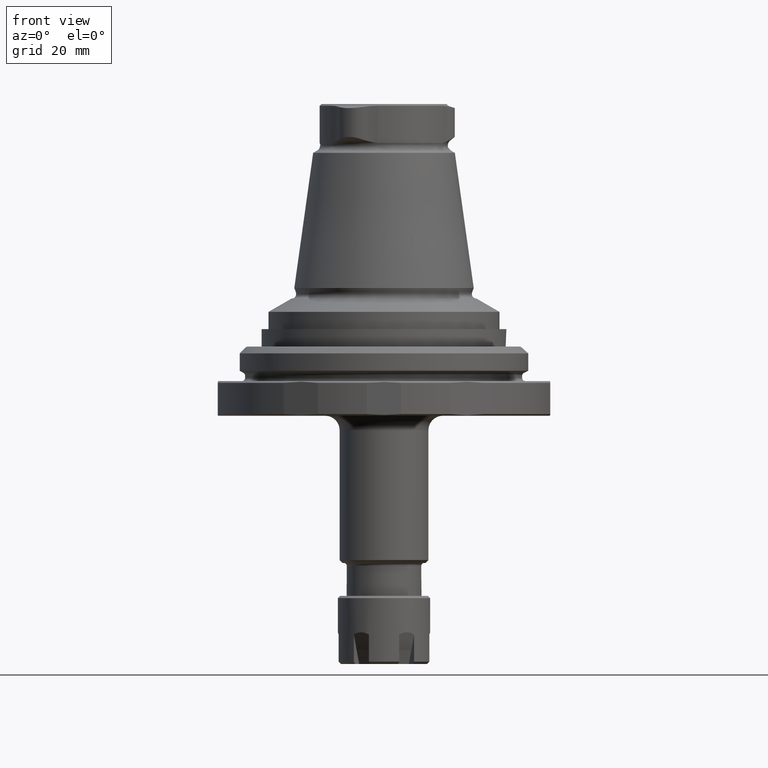
[diagram: clean part render]
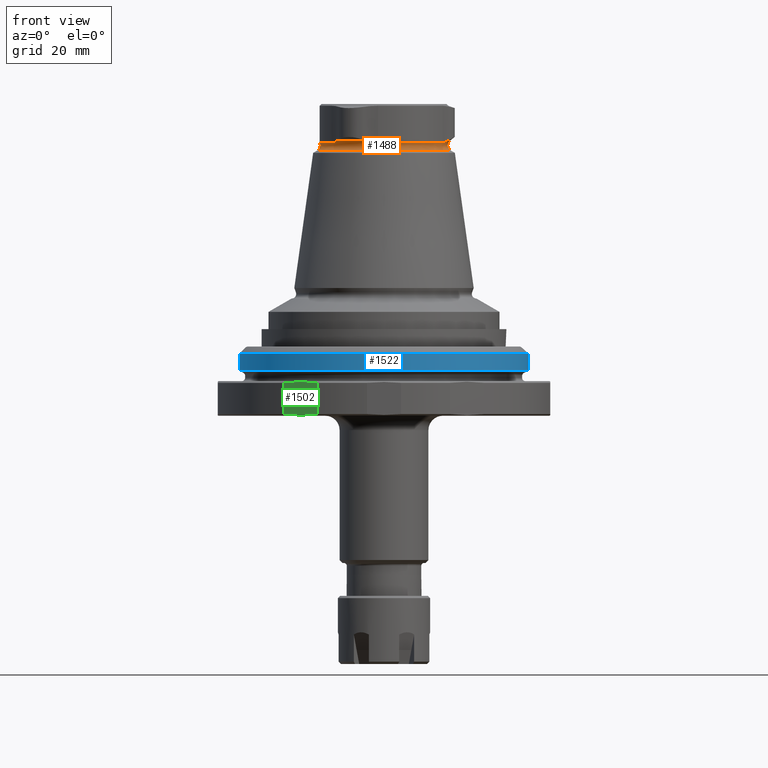
[diagram: same view with three faces highlighted in distinct colors, each labeled with its STEP entity id]
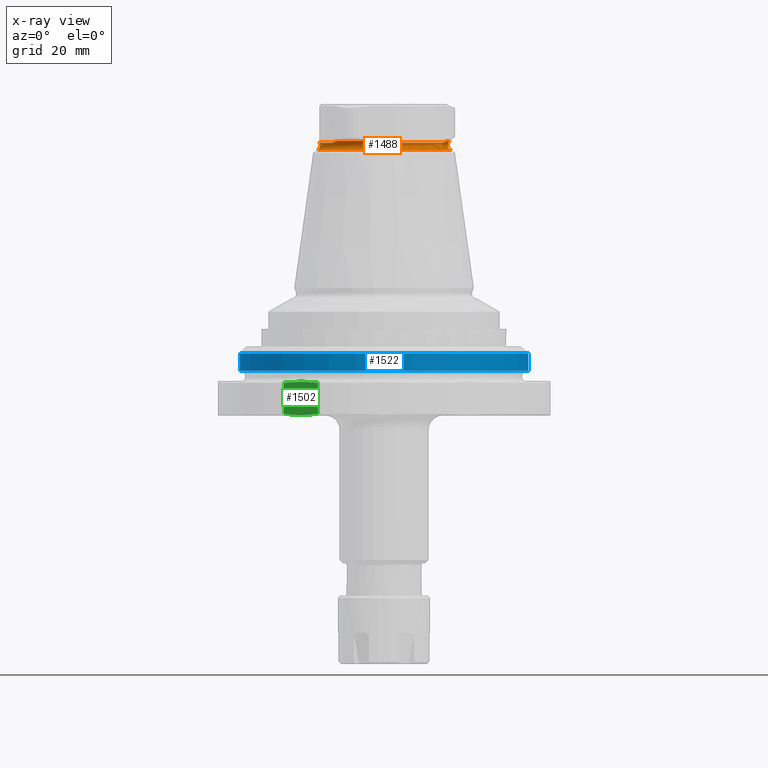
[diagram: x-ray of the same camera — body ghosted, the three highlighted faces saturated]
A machine part, front view with three faces highlighted in distinct colors.
The next image is the same camera in x-ray (body ghosted, the three faces saturated) — at least one of them is partly hidden behind the body in this view.
Their STEP definitions:

[orange] entity #1488 — the highlighted toroidal blend (fillet) surface has major radius 12.05 mm and minor (blend) radius 1 mm.
#51=B_SPLINE_CURVE_WITH_KNOTS('',3,(#2481,#2482,#2483,#2484),
 .UNSPECIFIED.,.F.,.F.,(4,4),(8.50890922870744E-7,0.00179869095250344),
 .UNSPECIFIED.);
#53=B_SPLINE_CURVE_WITH_KNOTS('',3,(#2495,#2496,#2497,#2498),
 .UNSPECIFIED.,.F.,.F.,(4,4),(1.97014138845495E-7,0.00179803707563466),
 .UNSPECIFIED.);
#55=B_SPLINE_CURVE_WITH_KNOTS('',3,(#2509,#2510,#2511,#2512),
 .UNSPECIFIED.,.F.,.F.,(4,4),(8.5089109195626E-7,0.00179869095262926),
 .UNSPECIFIED.);
#57=B_SPLINE_CURVE_WITH_KNOTS('',3,(#2523,#2524,#2525,#2526),
 .UNSPECIFIED.,.F.,.F.,(4,4),(2.1573467829511E-7,0.00179805579621476),
 .UNSPECIFIED.);
#59=B_SPLINE_CURVE_WITH_KNOTS('',3,(#2537,#2538,#2539,#2540),
 .UNSPECIFIED.,.F.,.F.,(4,4),(8.50891223283291E-7,0.00179869095271709),
 .UNSPECIFIED.);
#61=B_SPLINE_CURVE_WITH_KNOTS('',3,(#2551,#2552,#2553,#2554),
 .UNSPECIFIED.,.F.,.F.,(4,4),(2.40605450742352E-7,0.00179808066703067),
 .UNSPECIFIED.);
#220=TOROIDAL_SURFACE('',#1643,12.05,1.);
#533=ORIENTED_EDGE('',*,*,#824,.F.);
#534=ORIENTED_EDGE('',*,*,#823,.T.);
#535=ORIENTED_EDGE('',*,*,#822,.T.);
#536=ORIENTED_EDGE('',*,*,#819,.T.);
#537=ORIENTED_EDGE('',*,*,#818,.T.);
#538=ORIENTED_EDGE('',*,*,#816,.T.);
#539=ORIENTED_EDGE('',*,*,#814,.T.);
#540=ORIENTED_EDGE('',*,*,#811,.T.);
#541=ORIENTED_EDGE('',*,*,#810,.T.);
#542=ORIENTED_EDGE('',*,*,#808,.T.);
#543=ORIENTED_EDGE('',*,*,#806,.T.);
#544=ORIENTED_EDGE('',*,*,#803,.T.);
#545=ORIENTED_EDGE('',*,*,#802,.T.);
#802=EDGE_CURVE('',#975,#976,#51,.T.);
#803=EDGE_CURVE('',#977,#975,#1074,.T.);
#806=EDGE_CURVE('',#978,#977,#53,.T.);
#808=EDGE_CURVE('',#979,#978,#1075,.T.);
#810=EDGE_CURVE('',#980,#979,#55,.T.);
#811=EDGE_CURVE('',#981,#980,#1076,.T.);
#814=EDGE_CURVE('',#982,#981,#57,.T.);
#816=EDGE_CURVE('',#983,#982,#1077,.T.);
#818=EDGE_CURVE('',#984,#983,#59,.T.);
#819=EDGE_CURVE('',#985,#984,#1078,.T.);
#822=EDGE_CURVE('',#986,#985,#61,.T.);
#823=EDGE_CURVE('',#976,#986,#1079,.T.);
#824=EDGE_CURVE('',#987,#987,#1080,.T.);
#975=VERTEX_POINT('',#2478);
#976=VERTEX_POINT('',#2480);
#977=VERTEX_POINT('',#2487);
#978=VERTEX_POINT('',#2494);
#979=VERTEX_POINT('',#2501);
#980=VERTEX_POINT('',#2508);
#981=VERTEX_POINT('',#2515);
#982=VERTEX_POINT('',#2522);
#983=VERTEX_POINT('',#2529);
#984=VERTEX_POINT('',#2536);
#985=VERTEX_POINT('',#2543);
#986=VERTEX_POINT('',#2550);
#987=VERTEX_POINT('',#2559);
#1074=CIRCLE('',#1627,11.4072123903135);
#1075=CIRCLE('',#1630,11.15);
#1076=CIRCLE('',#1633,11.4072123903135);
#1077=CIRCLE('',#1636,11.15);
#1078=CIRCLE('',#1639,11.4072123903135);
#1079=CIRCLE('',#1642,11.15);
#1080=CIRCLE('',#1644,11.55);
#1189=EDGE_LOOP('',(#533));
#1190=EDGE_LOOP('',(#534,#535,#536,#537,#538,#539,#540,#541,#542,#543,#544,
#545));
#1327=FACE_BOUND('',#1189,.T.);
#1328=FACE_BOUND('',#1190,.T.);
#1488=ADVANCED_FACE('',(#1327,#1328),#220,.F.);
#1627=AXIS2_PLACEMENT_3D('',#2486,#1943,#1944);
#1630=AXIS2_PLACEMENT_3D('',#2502,#1951,#1952);
#1633=AXIS2_PLACEMENT_3D('',#2514,#1957,#1958);
#1636=AXIS2_PLACEMENT_3D('',#2530,#1965,#1966);
#1639=AXIS2_PLACEMENT_3D('',#2542,#1971,#1972);
#1642=AXIS2_PLACEMENT_3D('',#2556,#1978,#1979);
#1643=AXIS2_PLACEMENT_3D('',#2557,#1980,#1981);
#1644=AXIS2_PLACEMENT_3D('',#2558,#1982,#1983);
#1943=DIRECTION('',(2.49783760049311E-16,-7.79579225983867E-33,-1.));
#1944=DIRECTION('',(-1.,6.12303176911188E-17,-2.49783760049311E-16));
#1951=DIRECTION('',(2.49783760049311E-16,-7.79579225983867E-33,-1.));
#1952=DIRECTION('',(-1.,6.12303176911188E-17,-2.49783760049311E-16));
#1957=DIRECTION('',(2.49783760049311E-16,-7.79579225983867E-33,-1.));
#1958=DIRECTION('',(-1.,6.12303176911188E-17,-2.49783760049311E-16));
#1965=DIRECTION('',(2.49783760049311E-16,-7.79579225983867E-33,-1.));
#1966=DIRECTION('',(-1.,6.12303176911188E-17,-2.49783760049311E-16));
#1971=DIRECTION('',(2.49783760049311E-16,-7.79579225983867E-33,-1.));
#1972=DIRECTION('',(-1.,6.12303176911188E-17,-2.49783760049311E-16));
#1978=DIRECTION('',(2.49783760049311E-16,-7.79579225983867E-33,-1.));
#1979=DIRECTION('',(-1.,6.12303176911188E-17,-2.49783760049311E-16));
#1980=DIRECTION('',(2.49783760049311E-16,-7.79579225983867E-33,-1.));
#1981=DIRECTION('',(-1.,6.12303176911188E-17,-2.49783760049311E-16));
#1982=DIRECTION('',(2.49783760049311E-16,-7.79579225983867E-33,-1.));
#1983=DIRECTION('',(-1.,6.12303176911188E-17,-2.49783760049311E-16));
#2478=CARTESIAN_POINT('',(-8.16631301184023,-7.96466109199695,40.5971607155419));
#2480=CARTESIAN_POINT('',(-9.08956477504308,-6.45773274457035,40.2670061667781));
#2481=CARTESIAN_POINT('',(-8.16631301184023,-7.96466109199695,40.5971607155419));
#2482=CARTESIAN_POINT('',(-8.43716773628233,-7.44650007144286,40.4562890177724));
#2483=CARTESIAN_POINT('',(-8.73565666774484,-6.95587517209814,40.267006166778));
#2484=CARTESIAN_POINT('',(-9.0895647750435,-6.45773274457063,40.267006166778));
#2486=CARTESIAN_POINT('',(-4.0923333373623E-15,-5.3844836063934E-32,40.5971607155419));
#2487=CARTESIAN_POINT('',(-2.81444233228352,-11.0545650695073,40.5971607155419));
#2494=CARTESIAN_POINT('',(-1.04777822012703,-11.100660376817,40.2670061667769));
#2495=CARTESIAN_POINT('',(-1.0477782201269,-11.100660376817,40.2670061667777));
#2496=CARTESIAN_POINT('',(-1.65613685629354,-11.043238123783,40.2670061667776));
#2497=CARTESIAN_POINT('',(-2.23027456652951,-11.0300516398724,40.4562890668505));
#2498=CARTESIAN_POINT('',(-2.81444233228352,-11.0545650695073,40.5971607155419));
#2501=CARTESIAN_POINT('',(10.1373429951703,-4.64292763224633,40.2670061667778));
#2502=CARTESIAN_POINT('',(-3.2520566956375E-15,-1.02819562475755E-31,40.267006166777));
#2508=CARTESIAN_POINT('',(10.9807553441231,-3.08990397751001,40.5971607155419));
#2509=CARTESIAN_POINT('',(10.9807553441231,-3.08990397751001,40.5971607155419));
#2510=CARTESIAN_POINT('',(10.6674421615715,-3.58355146176541,40.4562890457737));
#2511=CARTESIAN_POINT('',(10.3917930782019,-4.0873627018511,40.2670061667778));
#2512=CARTESIAN_POINT('',(10.1373429951705,-4.6429276322464,40.2670061667778));
#2514=CARTESIAN_POINT('',(-4.0923333373623E-15,-5.3844836063934E-32,40.5971607155419));
#2515=CARTESIAN_POINT('',(10.9807553441229,3.08990397751094,40.5971607155419));
#2522=CARTESIAN_POINT('',(10.1373429951706,4.64292763224664,40.2670061667782));
#2523=CARTESIAN_POINT('',(10.1373429951706,4.64292763224665,40.2670061667782));
#2524=CARTESIAN_POINT('',(10.391793078202,4.08736270185151,40.2670061667782));
#2525=CARTESIAN_POINT('',(10.6674421615714,3.58355146176609,40.4562890457739));
#2526=CARTESIAN_POINT('',(10.9807553441229,3.08990397751093,40.5971607155419));
#2529=CARTESIAN_POINT('',(-1.04777822012694,11.1006603768167,40.2670061667788));
#2530=CARTESIAN_POINT('',(-3.2520566956375E-15,-1.02819562475755E-31,40.267006166777));
#2536=CARTESIAN_POINT('',(-2.81444233228175,11.0545650695078,40.5971607155419));
#2537=CARTESIAN_POINT('',(-2.81444233228175,11.0545650695078,40.5971607155419));
#2538=CARTESIAN_POINT('',(-2.23027456652832,11.0300516398729,40.4562890668508));
#2539=CARTESIAN_POINT('',(-1.65613685629275,11.0432381237836,40.2670061667787));
#2540=CARTESIAN_POINT('',(-1.04777822012697,11.1006603768175,40.2670061667787));
#2542=CARTESIAN_POINT('',(-4.0923333373623E-15,-5.3844836063934E-32,40.5971607155419));
#2543=CARTESIAN_POINT('',(-8.16631301184082,7.96466109199635,40.5971607155419));
#2550=CARTESIAN_POINT('',(-9.08956477504374,6.45773274457082,40.2670061667769));
#2551=CARTESIAN_POINT('',(-9.08956477504393,6.45773274457056,40.2670061667786));
#2552=CARTESIAN_POINT('',(-8.73565666774529,6.95587517209798,40.2670061667785));
#2553=CARTESIAN_POINT('',(-8.43716773628286,7.44650007144248,40.4562890177725));
#2554=CARTESIAN_POINT('',(-8.16631301184082,7.96466109199635,40.5971607155419));
#2556=CARTESIAN_POINT('',(-3.2520566956375E-15,-1.02819562475755E-31,40.267006166777));
#2557=CARTESIAN_POINT('',(-3.14317847885825E-15,-1.06217669540302E-31,39.8311162724229));
#2558=CARTESIAN_POINT('',(-3.68466879433966E-15,-6.65681135439398E-32,38.9650908686385));
#2559=CARTESIAN_POINT('',(-11.55,7.07210169332422E-16,38.9650908686385));

[blue] entity #1522 — the highlighted cylindrical surface (bore or boss wall) has radius 25 mm, axis along (0, 0, -1).
#252=CYLINDRICAL_SURFACE('',#1710,25.);
#674=ORIENTED_EDGE('',*,*,#889,.F.);
#675=ORIENTED_EDGE('',*,*,#888,.T.);
#888=EDGE_CURVE('',#1035,#1035,#1112,.T.);
#889=EDGE_CURVE('',#1036,#1036,#1113,.T.);
#1035=VERTEX_POINT('',#2752);
#1036=VERTEX_POINT('',#2755);
#1112=CIRCLE('',#1709,25.);
#1113=CIRCLE('',#1711,25.);
#1241=EDGE_LOOP('',(#674));
#1242=EDGE_LOOP('',(#675));
#1379=FACE_BOUND('',#1241,.T.);
#1380=FACE_BOUND('',#1242,.T.);
#1522=ADVANCED_FACE('',(#1379,#1380),#252,.T.);
#1709=AXIS2_PLACEMENT_3D('',#2751,#2128,#2129);
#1710=AXIS2_PLACEMENT_3D('',#2753,#2130,#2131);
#1711=AXIS2_PLACEMENT_3D('',#2754,#2132,#2133);
#2128=DIRECTION('',(1.22464605849178E-16,1.04225259501902E-17,-1.));
#2129=DIRECTION('',(-1.,-1.84889274661175E-32,-1.22464605849178E-16));
#2130=DIRECTION('',(1.22464605849178E-16,1.04225259501902E-17,-1.));
#2131=DIRECTION('',(-1.,-1.84889274661175E-32,-1.22464605849178E-16));
#2132=DIRECTION('',(1.22464605849178E-16,1.04225259501902E-17,-1.));
#2133=DIRECTION('',(-1.,-1.84889274661175E-32,-1.22464605849178E-16));
#2751=CARTESIAN_POINT('',(4.56425937766398E-15,4.37746089907985E-17,3.8));
#2752=CARTESIAN_POINT('',(-25.,4.3774608990798E-17,3.79999999999999));
#2753=CARTESIAN_POINT('',(5.15208948574003E-15,9.38027335517118E-17,-1.00000000000001));
#2754=CARTESIAN_POINT('',(4.93165319521151E-15,7.50421868413693E-17,0.799999999999989));
#2755=CARTESIAN_POINT('',(-25.,7.50421868413688E-17,0.799999999999986));

[green] entity #1502 — the highlighted planar face has unit normal (0.5, 0.866, 0).
#65=B_SPLINE_CURVE_WITH_KNOTS('',3,(#2615,#2616,#2617,#2618),
 .UNSPECIFIED.,.F.,.F.,(4,4),(0.0123361877565685,0.019109524321464),
 .UNSPECIFIED.);
#75=B_SPLINE_CURVE_WITH_KNOTS('',3,(#2688,#2689,#2690,#2691),
 .UNSPECIFIED.,.F.,.F.,(4,4),(0.0123361877565685,0.019109524321464),
 .UNSPECIFIED.);
#135=LINE('',#2654,#205);
#136=LINE('',#2707,#206);
#205=VECTOR('',#2047,1000.);
#206=VECTOR('',#2064,1000.);
#608=ORIENTED_EDGE('',*,*,#870,.F.);
#609=ORIENTED_EDGE('',*,*,#865,.F.);
#610=ORIENTED_EDGE('',*,*,#855,.F.);
#611=ORIENTED_EDGE('',*,*,#843,.F.);
#843=EDGE_CURVE('',#1005,#1006,#65,.F.);
#855=EDGE_CURVE('',#1006,#1016,#135,.T.);
#865=EDGE_CURVE('',#1016,#1025,#75,.T.);
#870=EDGE_CURVE('',#1025,#1005,#136,.F.);
#1005=VERTEX_POINT('',#2614);
#1006=VERTEX_POINT('',#2619);
#1016=VERTEX_POINT('',#2652);
#1025=VERTEX_POINT('',#2692);
#1214=EDGE_LOOP('',(#608,#609,#610,#611));
#1352=FACE_BOUND('',#1214,.T.);
#1420=PLANE('',#1683);
#1502=ADVANCED_FACE('',(#1352),#1420,.F.);
#1683=AXIS2_PLACEMENT_3D('',#2709,#2066,#2067);
#2047=DIRECTION('',(1.22464605849178E-16,1.04225259501902E-17,-1.));
#2064=DIRECTION('',(1.22464605849178E-16,1.04225259501902E-17,-1.));
#2066=DIRECTION('',(0.499999999999999,0.866025403784439,7.02584751690562E-17));
#2067=DIRECTION('',(1.22464605849178E-16,1.04225259501902E-17,-1.));
#2614=CARTESIAN_POINT('',(-17.3444863728671,-23.2415316289919,-1.30000000000001));
#2615=CARTESIAN_POINT('',(-11.4555136271329,-26.6415316289918,-1.30000000000001));
#2616=CARTESIAN_POINT('',(-13.4230431543256,-25.5055779268286,-1.03363844225139));
#2617=CARTESIAN_POINT('',(-15.3860131788131,-24.3722566547796,-1.03486447671186));
#2618=CARTESIAN_POINT('',(-17.3444863728671,-23.2415316289919,-1.30000000000001));
#2619=CARTESIAN_POINT('',(-11.4555136271329,-26.6415316289918,-1.30000000000001));
#2652=CARTESIAN_POINT('',(-11.4555136271329,-26.6415316289918,-6.70000000000001));
#2654=CARTESIAN_POINT('',(-11.4555136271329,-26.6415316289918,-1.00000000000001));
#2688=CARTESIAN_POINT('',(-11.4555136271329,-26.6415316289918,-6.70000000000001));
#2689=CARTESIAN_POINT('',(-13.4230431543256,-25.5055779268286,-6.96636155774864));
#2690=CARTESIAN_POINT('',(-15.3860131788131,-24.3722566547796,-6.96513552328817));
#2691=CARTESIAN_POINT('',(-17.3444863728671,-23.2415316289919,-6.70000000000002));
#2692=CARTESIAN_POINT('',(-17.3444863728671,-23.2415316289919,-6.70000000000001));
#2707=CARTESIAN_POINT('',(-17.3444863728671,-23.2415316289919,-1.00000000000001));
#2709=CARTESIAN_POINT('',(-14.4,-24.9415316289918,-4.00000000000001));